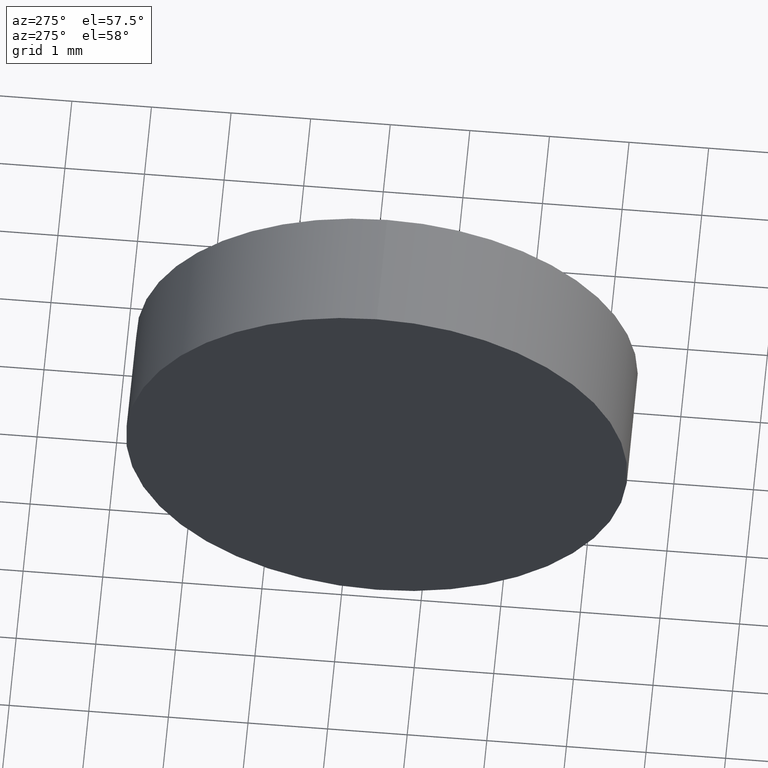
[diagram: clean part render]
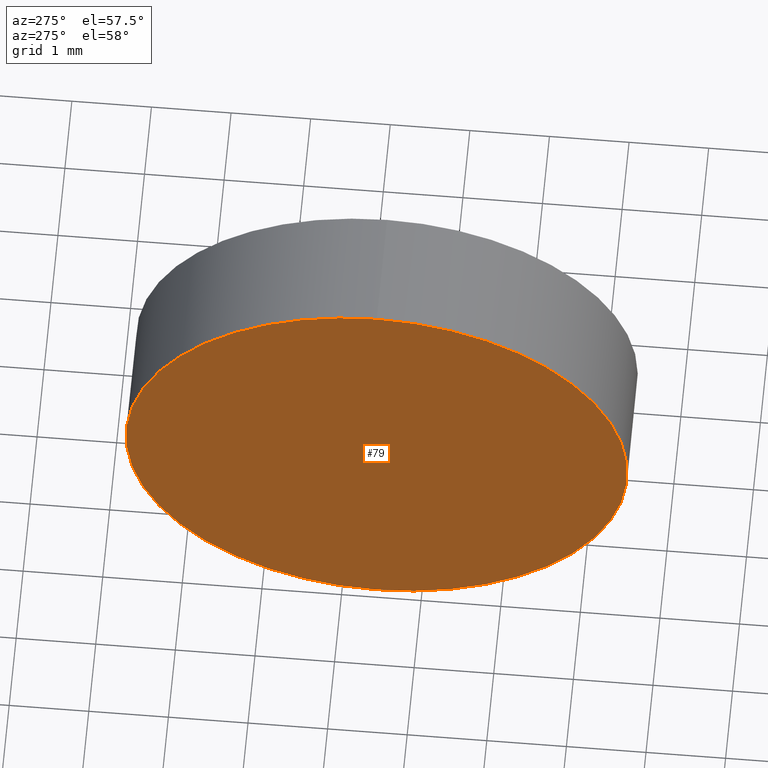
[diagram: same view with one face highlighted and labeled with its STEP entity id]
A machine part, auxiliary view. The second image highlights one B-rep face of the part: STEP entity #79.
In plain terms, the highlighted planar face has unit normal (1, 0, 0).
Its self-contained STEP definition (entity closure, byte-faithful):
#5 = DIRECTION ( 'NONE',  ( -1.000000000000000000, -0.0000000000000000000, -0.0000000000000000000 ) ) ;
#15 = AXIS2_PLACEMENT_3D ( 'NONE', #51, #5, #174 ) ;
#17 = CARTESIAN_POINT ( 'NONE',  ( 443.0233712523840900, -98.43972951502320300, 0.0000000000000000000 ) ) ;
#24 = CIRCLE ( 'NONE', #41, 3.150000000000013700 ) ;
#27 = EDGE_CURVE ( 'NONE', #75, #38, #24, .T. ) ;
#38 = VERTEX_POINT ( 'NONE', #83 ) ;
#41 = AXIS2_PLACEMENT_3D ( 'NONE', #17, #173, #186 ) ;
#43 = CARTESIAN_POINT ( 'NONE',  ( 443.0233712523840900, -98.43972951502320300, -3.150000000000013700 ) ) ;
#51 = CARTESIAN_POINT ( 'NONE',  ( 443.0233712523840900, -98.43972951502320300, 0.0000000000000000000 ) ) ;
#71 = EDGE_LOOP ( 'NONE', ( #90, #126 ) ) ;
#75 = VERTEX_POINT ( 'NONE', #43 ) ;
#79 = ADVANCED_FACE ( 'NONE', ( #93 ), #147, .F. ) ;
#83 = CARTESIAN_POINT ( 'NONE',  ( 443.0233712523840900, -98.43972951502320300, 3.150000000000013700 ) ) ;
#88 = EDGE_CURVE ( 'NONE', #38, #75, #149, .T. ) ;
#90 = ORIENTED_EDGE ( 'NONE', *, *, #88, .T. ) ;
#93 = FACE_OUTER_BOUND ( 'NONE', #71, .T. ) ;
#122 = DIRECTION ( 'NONE',  ( 1.000000000000000000, 0.0000000000000000000, 0.0000000000000000000 ) ) ;
#126 = ORIENTED_EDGE ( 'NONE', *, *, #27, .T. ) ;
#147 = PLANE ( 'NONE',  #162 ) ;
#149 = CIRCLE ( 'NONE', #15, 3.150000000000013700 ) ;
#162 = AXIS2_PLACEMENT_3D ( 'NONE', #184, #122, #172 ) ;
#172 = DIRECTION ( 'NONE',  ( 0.0000000000000000000, 0.0000000000000000000, -1.000000000000000000 ) ) ;
#173 = DIRECTION ( 'NONE',  ( -1.000000000000000000, -0.0000000000000000000, -0.0000000000000000000 ) ) ;
#174 = DIRECTION ( 'NONE',  ( 0.0000000000000000000, 0.0000000000000000000, 1.000000000000000000 ) ) ;
#184 = CARTESIAN_POINT ( 'NONE',  ( 443.0233712523840900, -98.43972951502320300, 0.0000000000000000000 ) ) ;
#186 = DIRECTION ( 'NONE',  ( 0.0000000000000000000, 0.0000000000000000000, 1.000000000000000000 ) ) ;